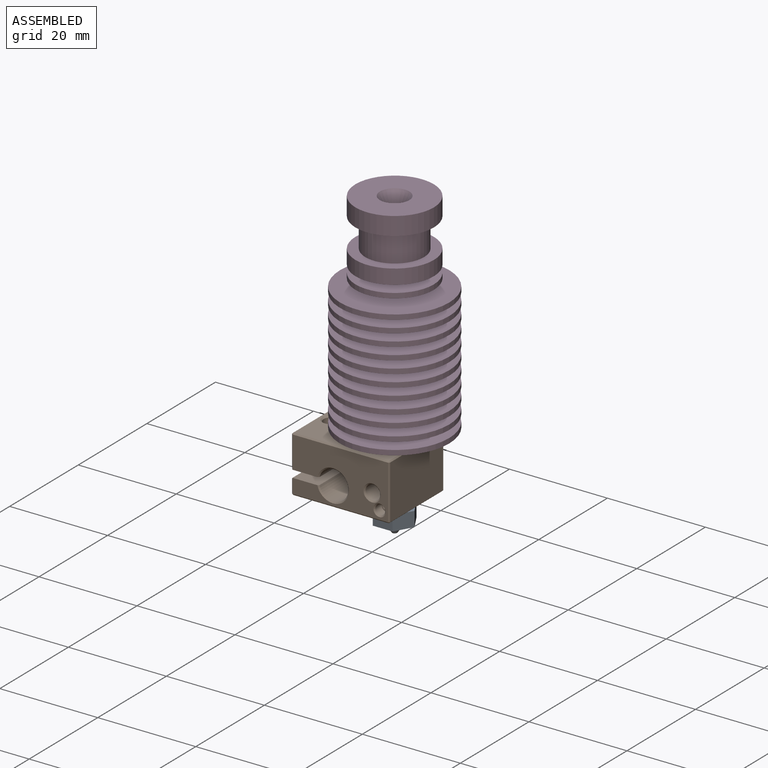
[diagram: assembled view]
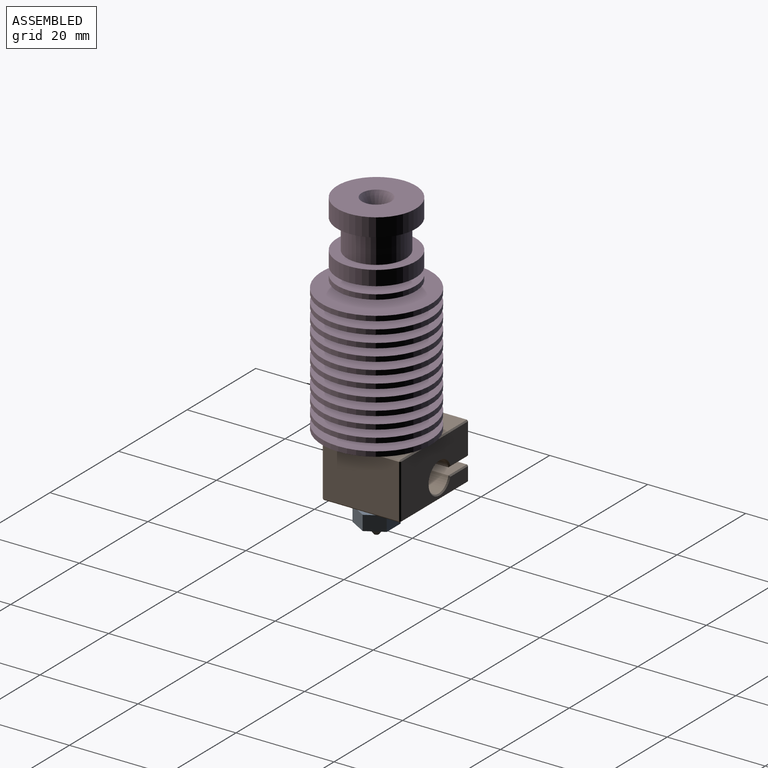
[diagram: assembled view, second angle]
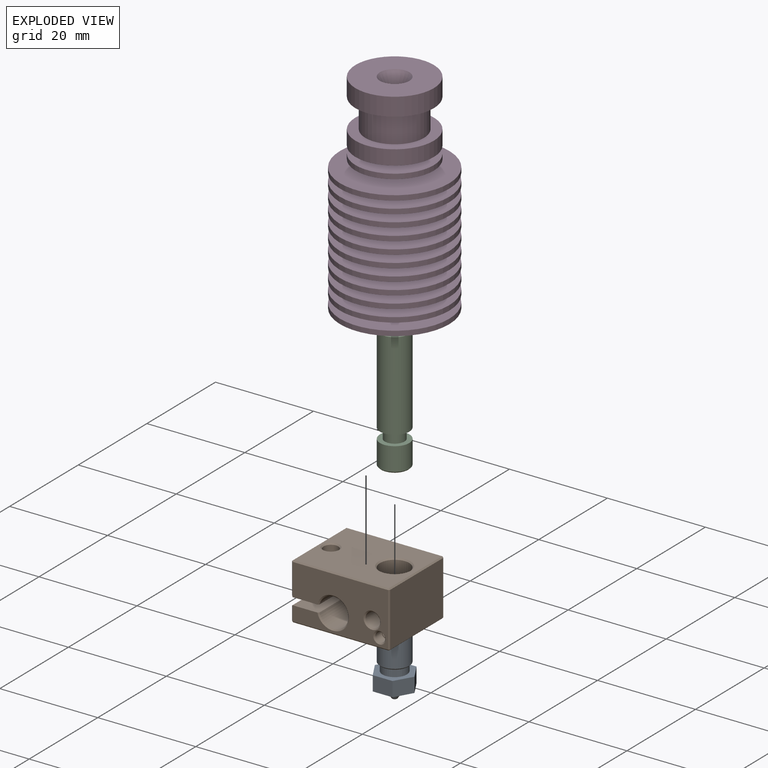
[diagram: exploded view]
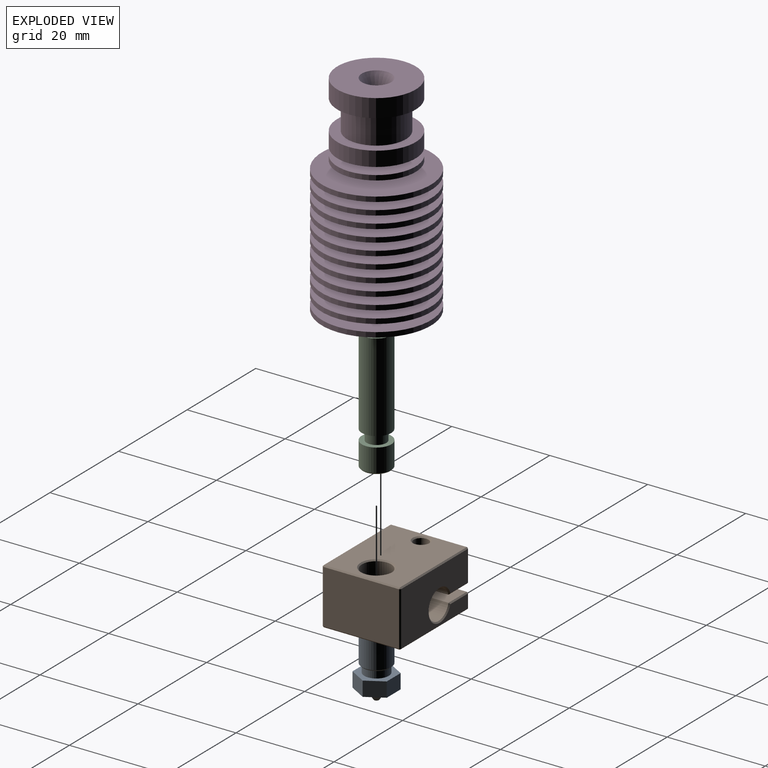
[diagram: exploded view, second angle]
ASSEMBLY  parts=4 mates=3
PART A: 22 faces, bbox 8.1x7x12.5 mm
  f0: cone r=1.6mm half-angle=45deg, axis (0,0,1), area 3.8mm2, adj f1,f15
  f1: cylinder r=1.6mm len=9.85mm, axis (0,0,1), area 99mm2, adj f0,f2
  f2: cone r=0.75mm half-angle=73.3deg, axis (0,0,1), area 6.6mm2, adj f1,f3
  f3: cylinder r=0.75mm len=1.5mm, axis (0,0,1), area 5.6mm2, adj f2,f4
  f4: cone r=0.2mm half-angle=73.3deg, axis (0,0,1), area 1.7mm2, adj f3,f5
  f5: cylinder r=0.2mm len=0.8mm, axis (0,0,1), area 1mm2, adj f4,f6
  f6: plane 1x1mm, normal (0,0,-1), area 0.7mm2, adj f5,f7
  f7: cone r=1.9mm half-angle=35deg, axis (0,0,1), area 18.4mm2, adj f6,f8
  f8: plane 8.08x7mm, normal (0,0,-1), area 31.1mm2, adj f7,f16,f17,f18,f19,f20,f21
  f9: plane 8.08x7mm, normal (0,0,1), area 22.8mm2, adj f10,f16,f17,f18,f19,f20,f21
  f10: cylinder r=2.5mm len=5mm, axis (0,0,1), area 23.6mm2, adj f9,f11
  f11: plane 5.5x5.5mm, normal (0,0,-1), area 4.1mm2, adj f10,f12
  f12: cone r=3mm half-angle=45deg, axis (0,0,1), area 6.4mm2, adj f11,f13
  f13: cylinder r=3mm len=6mm, axis (0,0,1), area 103.7mm2, adj f12,f14
  f14: cone r=2.75mm half-angle=45deg, axis (0,0,-1), area 6.4mm2, adj f13,f15
  f15: plane 5.5x5.5mm, normal (0,0,1), area 13mm2, adj f0,f14
  f16: plane 3.5x3mm, normal (-0.87,-0.5,0), area 12.1mm2, adj f8,f9,f17,f19
  f17: plane 4.04x3mm, normal (0,-1,0), area 12.1mm2, adj f8,f9,f16,f18
  f18: plane 3.5x3mm, normal (0.87,-0.5,0), area 12.1mm2, adj f8,f9,f17,f20
  f19: plane 3.5x3mm, normal (-0.87,0.5,0), area 12.1mm2, adj f8,f9,f16,f21
  f20: plane 3.5x3mm, normal (0.87,0.5,0), area 12.1mm2, adj f8,f9,f18,f21
  f21: plane 4.04x3mm, normal (0,1,0), area 12.1mm2, adj f8,f9,f19,f20
PART B: 55 faces, bbox 20x16x11.5 mm
  f0: plane 15.5x6.25mm, normal (-1,0,0), area 96.9mm2, adj f24,f27,f30,f31
  f1: plane 19.5x11mm, normal (0,-1,0), area 159.2mm2, adj f10,f11,f19,f20,f21,f27,f32,f39
  f2: cylinder r=1.5mm len=6.5mm, axis (0,0,1), area 61.3mm2, adj f10,f23
  f3: cylinder r=1.5mm len=3mm, axis (0,0,1), area 28.3mm2, adj f11,f54
  f4: plane 19.5x11mm, normal (0,1,0), area 171.2mm2, adj f25,f30,f34,f38,f41,f42,f45,f46
  f5: plane 15.5x2.75mm, normal (-1,0,0), area 42.6mm2, adj f45,f48,f51,f52
  f6: plane 15.5x11mm, normal (1,0,0), area 170.5mm2, adj f33,f34,f39,f40
  f7: cylinder r=3mm len=11mm, axis (0,0,1), area 207.3mm2, adj f22,f53
  f8: plane 19.5x15.5mm, normal (0,0,-1), area 259.4mm2, adj f40,f41,f47,f48,f53,f54
  f9: plane 19.5x15.5mm, normal (0,0,1), area 259.4mm2, adj f22,f23,f24,f25,f32,f33
  f10: plane 15.75x5.35mm, normal (0,0,-1), area 77.1mm2, adj f1,f2,f12,f19,f31,f38
  f11: plane 15.75x5.35mm, normal (0,0,1), area 77.1mm2, adj f1,f3,f12,f19,f46,f51
  f12: cylinder r=3mm len=15.5mm, axis (0,-1,0), area 268.7mm2, adj f10,f11,f19,f42
  f13: cylinder r=1.5mm len=3.25mm, axis (0,-1,0), area 30.6mm2, adj f14,f21
  f14: plane 3x3mm, normal (0,-1,0), area 7.1mm2, adj f13
  f15: cylinder r=1mm len=2mm, axis (0,-1,0), area 11mm2, adj f16,f20
  f16: plane 2x2mm, normal (0,-1,0), area 1.4mm2, adj f15,f18
  f17: plane 1.5x1.5mm, normal (0,-1,0), area 1.8mm2, adj f18
  f18: cylinder r=0.75mm len=2.5mm, axis (0,-1,0), area 11.8mm2, adj f16,f17
  f19: cone r=3mm half-angle=45deg, axis (0,-1,0), area 6.4mm2, adj f1,f10,f11,f12
  f20: cone r=1mm half-angle=45deg, axis (0,-1,0), area 2.5mm2, adj f1,f15
  f21: cone r=1.5mm half-angle=45deg, axis (0,-1,0), area 3.6mm2, adj f1,f13
  f22: cone r=3mm half-angle=45deg, axis (0,0,1), area 6.9mm2, adj f7,f9
  f23: cone r=1.5mm half-angle=45deg, axis (0,0,1), area 3.6mm2, adj f2,f9
  f24: plane 15.5x0.25mm, normal (-0.71,0,0.71), area 5.5mm2, adj f0,f9,f26,f28
  f25: plane 19.5x0.25mm, normal (0,0.71,0.71), area 6.9mm2, adj f4,f9,f26,f29
  f26: plane 0.25x0.25mm, normal (-0.58,0.58,0.58), area 0.1mm2, adj f24,f25,f30
  f27: plane 6.5x0.25mm, normal (-0.71,-0.71,0), area 2.3mm2, adj f0,f1,f28,f31
  f28: plane 0.25x0.25mm, normal (-0.58,-0.58,0.58), area 0.1mm2, adj f24,f27,f32
  f29: plane 0.25x0.25mm, normal (0.58,0.58,0.58), area 0.1mm2, adj f25,f33,f34
  f30: plane 6.25x0.25mm, normal (-0.71,0.71,0), area 2.2mm2, adj f0,f4,f26,f35
  f31: plane 15.75x0.25mm, normal (-0.71,0,-0.71), area 5.5mm2, adj f0,f10,f27,f35
  f32: plane 19.5x0.25mm, normal (0,-0.71,0.71), area 6.9mm2, adj f1,f9,f28,f36
  f33: plane 15.5x0.25mm, normal (0.71,0,0.71), area 5.5mm2, adj f6,f9,f29,f36
  f34: plane 11x0.25mm, normal (0.71,0.71,0), area 3.9mm2, adj f4,f6,f29,f37
  f35: plane 0.25x0.25mm, normal (-0.58,0.58,-0.58), area 0.1mm2, adj f30,f31,f38
  f36: plane 0.25x0.25mm, normal (0.58,-0.58,0.58), area 0.1mm2, adj f32,f33,f39
  f37: plane 0.25x0.25mm, normal (0.58,0.58,-0.58), area 0.1mm2, adj f34,f40,f41
  f38: plane 5.35x0.26mm, normal (0,0.71,-0.71), area 1.9mm2, adj f4,f10,f35,f42
  f39: plane 11x0.25mm, normal (0.71,-0.71,0), area 3.9mm2, adj f1,f6,f36,f43
  f40: plane 15.5x0.25mm, normal (0.71,0,-0.71), area 5.5mm2, adj f6,f8,f37,f43
  f41: plane 19.5x0.25mm, normal (0,0.71,-0.71), area 6.9mm2, adj f4,f8,f37,f44
  f42: cone r=3.25mm half-angle=45deg, axis (0,1,0), area 6.3mm2, adj f4,f12,f38,f46
  f43: plane 0.25x0.25mm, normal (0.58,-0.58,-0.58), area 0.1mm2, adj f39,f40,f47
  f44: plane 0.25x0.25mm, normal (-0.58,0.58,-0.58), area 0.1mm2, adj f41,f45,f48
  f45: plane 2.75x0.25mm, normal (-0.71,0.71,0), area 1mm2, adj f4,f5,f44,f49
  f46: plane 5.35x0.26mm, normal (0,0.71,0.71), area 1.9mm2, adj f4,f11,f42,f49
  f47: plane 19.5x0.25mm, normal (0,-0.71,-0.71), area 6.9mm2, adj f1,f8,f43,f50
  f48: plane 15.5x0.25mm, normal (-0.71,0,-0.71), area 5.5mm2, adj f5,f8,f44,f50
  f49: plane 0.25x0.25mm, normal (-0.58,0.58,0.58), area 0.1mm2, adj f45,f46,f51
  f50: plane 0.25x0.25mm, normal (-0.58,-0.58,-0.58), area 0.1mm2, adj f47,f48,f52
  f51: plane 15.75x0.25mm, normal (-0.71,0,0.71), area 5.5mm2, adj f5,f11,f49,f52
  f52: plane 3x0.25mm, normal (-0.71,-0.71,0), area 1mm2, adj f1,f5,f50,f51
  f53: cone r=3.25mm half-angle=45deg, axis (0,0,-1), area 6.9mm2, adj f7,f8
  f54: cone r=1.75mm half-angle=45deg, axis (0,0,-1), area 3.6mm2, adj f3,f8
PART C: 9 faces, bbox 6x6x25.6 mm
  f0: cone r=1.6mm half-angle=70deg, axis (0,0,-1), area 21.5mm2, adj f1,f8
  f1: cylinder r=1.6mm len=25.61mm, axis (0,0,1), area 257.5mm2, adj f0,f2
  f2: plane 5.5x5.5mm, normal (0,0,-1), area 15.7mm2, adj f1,f3
  f3: cone r=2.75mm half-angle=45deg, axis (0,0,1), area 6.4mm2, adj f2,f4
  f4: cylinder r=3mm len=6mm, axis (0,0,1), area 89.5mm2, adj f3,f5
  f5: plane 6x6mm, normal (0,0,1), area 15.7mm2, adj f4,f6
  f6: cylinder r=2mm len=4mm, axis (0,0,1), area 26.4mm2, adj f5,f7
  f7: plane 6x6mm, normal (0,0,-1), area 15.7mm2, adj f6,f8
  f8: cylinder r=3mm len=18mm, axis (0,0,1), area 339.3mm2, adj f0,f7
PART D: 59 faces, bbox 22.3x22.3x42.7 mm
  f0: cone r=1.6mm half-angle=70deg, axis (0,0,-1), area 21.5mm2, adj f1,f58
  f1: cylinder r=3mm len=18mm, axis (0,0,1), area 339.3mm2, adj f0,f2
  f2: plane 22.3x22.3mm, normal (0,0,-1), area 362.3mm2, adj f1,f3
  f3: cylinder r=11.15mm len=22.3mm, axis (0,0,1), area 70.1mm2, adj f2,f4
  f4: plane 22.3x22.3mm, normal (0,0,1), area 293.6mm2, adj f3,f5
  f5: cylinder r=5.56mm len=11.11mm, axis (0,0,1), area 52.4mm2, adj f4,f6
  f6: plane 22.3x22.3mm, normal (0,0,-1), area 293.6mm2, adj f5,f7
  f7: cylinder r=11.15mm len=22.3mm, axis (0,0,1), area 70.1mm2, adj f6,f8
  f8: plane 22.3x22.3mm, normal (0,0,1), area 297.4mm2, adj f7,f9
  f9: cylinder r=5.45mm len=10.89mm, axis (0,0,1), area 51.3mm2, adj f8,f10
  f10: plane 22.3x22.3mm, normal (0,0,-1), area 297.4mm2, adj f9,f11
  f11: cylinder r=11.15mm len=22.3mm, axis (0,0,1), area 70.1mm2, adj f10,f12
  f12: plane 22.3x22.3mm, normal (0,0,1), area 301.1mm2, adj f11,f13
  f13: cylinder r=5.34mm len=10.68mm, axis (0,0,1), area 50.3mm2, adj f12,f14
  f14: plane 22.3x22.3mm, normal (0,0,-1), area 301.1mm2, adj f13,f15
  f15: cylinder r=11.15mm len=22.3mm, axis (0,0,1), area 70.1mm2, adj f14,f16
  f16: plane 22.3x22.3mm, normal (0,0,1), area 304.7mm2, adj f15,f17
  f17: cylinder r=5.23mm len=10.46mm, axis (0,0,1), area 49.3mm2, adj f16,f18
  f18: plane 22.3x22.3mm, normal (0,0,-1), area 304.7mm2, adj f17,f19
  f19: cylinder r=11.15mm len=22.3mm, axis (0,0,1), area 70.1mm2, adj f18,f20
  f20: plane 22.3x22.3mm, normal (0,0,1), area 308.2mm2, adj f19,f21
  f21: cylinder r=5.12mm len=10.24mm, axis (0,0,1), area 48.3mm2, adj f20,f22
  f22: plane 22.3x22.3mm, normal (0,0,-1), area 308.2mm2, adj f21,f23
  f23: cylinder r=11.15mm len=22.3mm, axis (0,0,1), area 70.1mm2, adj f22,f24
  f24: plane 22.3x22.3mm, normal (0,0,1), area 311.7mm2, adj f23,f25
  f25: cylinder r=5.01mm len=10.02mm, axis (0,0,1), area 47.2mm2, adj f24,f26
  f26: plane 22.3x22.3mm, normal (0,0,-1), area 311.7mm2, adj f25,f27
  f27: cylinder r=11.15mm len=22.3mm, axis (0,0,1), area 70.1mm2, adj f26,f28
  f28: plane 22.3x22.3mm, normal (0,0,1), area 315.1mm2, adj f27,f29
  f29: cylinder r=4.9mm len=9.8mm, axis (0,0,1), area 46.2mm2, adj f28,f30
  f30: plane 22.3x22.3mm, normal (0,0,-1), area 315.1mm2, adj f29,f31
  f31: cylinder r=11.15mm len=22.3mm, axis (0,0,1), area 70.1mm2, adj f30,f32
  f32: plane 22.3x22.3mm, normal (0,0,1), area 318.4mm2, adj f31,f33
  f33: cylinder r=4.79mm len=9.58mm, axis (0,0,1), area 45.2mm2, adj f32,f34
  f34: plane 22.3x22.3mm, normal (0,0,-1), area 318.4mm2, adj f33,f35
  f35: cylinder r=11.15mm len=22.3mm, axis (0,0,1), area 70.1mm2, adj f34,f36
  f36: plane 22.3x22.3mm, normal (0,0,1), area 321.7mm2, adj f35,f37
  f37: cylinder r=4.68mm len=9.37mm, axis (0,0,1), area 44.1mm2, adj f36,f38
  f38: plane 22.3x22.3mm, normal (0,0,-1), area 321.7mm2, adj f37,f39
  f39: cylinder r=11.15mm len=22.3mm, axis (0,0,1), area 70.1mm2, adj f38,f40
  f40: plane 22.3x22.3mm, normal (0,0,1), area 324.8mm2, adj f39,f41
  f41: cylinder r=4.57mm len=9.15mm, axis (0,0,1), area 43.1mm2, adj f40,f42
  f42: plane 22.3x22.3mm, normal (0,0,-1), area 324.8mm2, adj f41,f43
  f43: cylinder r=11.15mm len=22.3mm, axis (0,0,1), area 70.1mm2, adj f42,f44
  f44: plane 22.3x22.3mm, normal (0,0,1), area 327.9mm2, adj f43,f45
  f45: cylinder r=4.46mm len=8.93mm, axis (0,0,1), area 42.1mm2, adj f44,f46
  f46: plane 16x16mm, normal (0,0,-1), area 138.4mm2, adj f45,f47
  f47: cylinder r=8mm len=16mm, axis (0,0,1), area 50.3mm2, adj f46,f48
  f48: plane 16x16mm, normal (0,0,1), area 138.4mm2, adj f47,f49
  f49: cylinder r=4.46mm len=8.93mm, axis (0,0,1), area 42.1mm2, adj f48,f50
  f50: plane 16x16mm, normal (0,0,-1), area 138.4mm2, adj f49,f51
  f51: cylinder r=8mm len=16mm, axis (0,0,1), area 150.8mm2, adj f50,f52
  f52: plane 16x16mm, normal (0,0,1), area 88mm2, adj f51,f53
  f53: cylinder r=6mm len=12mm, axis (0,0,1), area 226.2mm2, adj f52,f54
  f54: plane 16x16mm, normal (0,0,-1), area 88mm2, adj f53,f55
  f55: cylinder r=8mm len=16mm, axis (0,0,1), area 186mm2, adj f54,f56
  f56: plane 16x16mm, normal (0,0,1), area 172.8mm2, adj f55,f57
  f57: cone r=3mm half-angle=30deg, axis (0,0,1), area 40.5mm2, adj f56,f58
  f58: cylinder r=1.6mm len=21.77mm, axis (0,0,1), area 218.8mm2, adj f0,f57
PLACE A t=(37.53,12.96,11.1)mm
PLACE B t=(37.53,12.96,10.85)mm
PLACE C t=(37.53,12.96,10.85)mm
PLACE D t=(37.53,12.96,10.85)mm
MATE fastened C.f3 <-> B.f22  axis (0,0,1) through (37.53,12.96,8.75)mm
MATE fastened C.f3 <-> D.f1  axis (0,0,1) through (37.53,12.96,10.85)mm
MATE fastened C.f3 <-> A.f7  axis (0,0,1) through (37.53,12.96,4)mm
